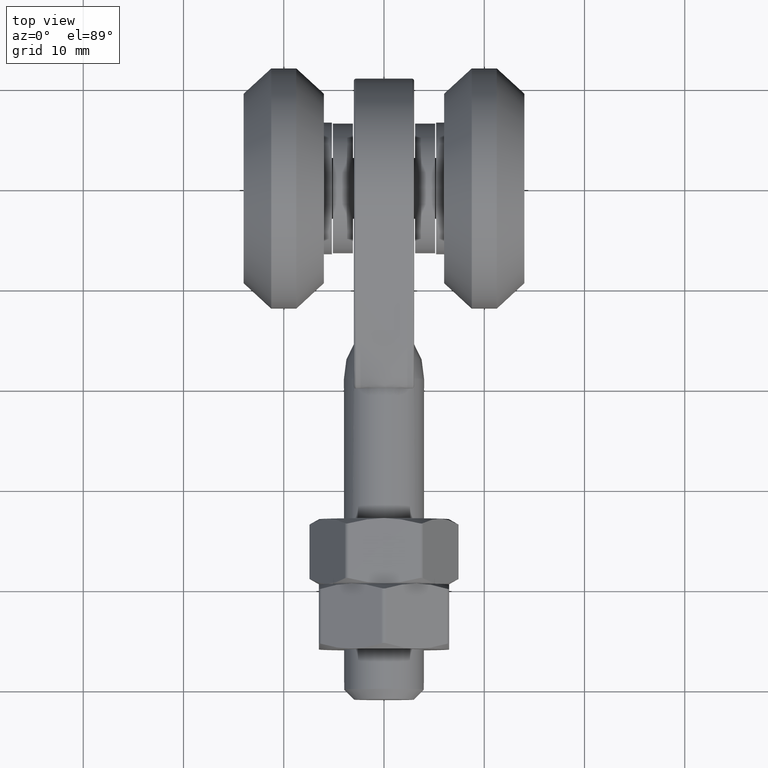
[diagram: clean part render]
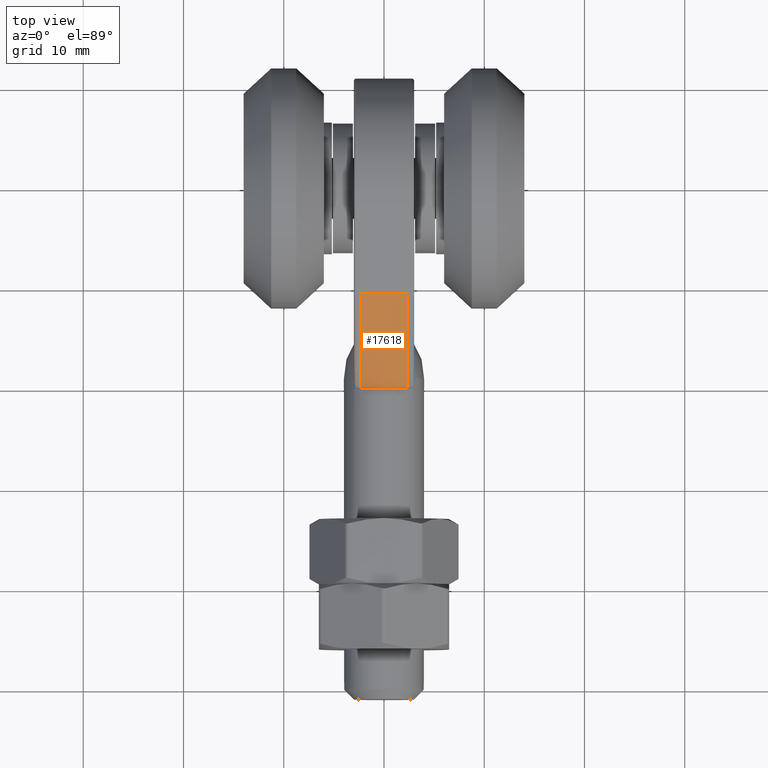
[diagram: same view with one face highlighted and labeled with its STEP entity id]
A machine part, top view. The second image highlights one B-rep face of the part: STEP entity #17618.
In plain terms, the highlighted face is a freeform B-spline surface patch.
Its self-contained STEP definition (entity closure, byte-faithful):
#147 = CARTESIAN_POINT ( 'NONE',  ( 1.063628923261003667, 9.357181689248472267, 7.970383240609347553 ) ) ;
#238 = CARTESIAN_POINT ( 'NONE',  ( -0.6892895054689178735, 9.350655626458923564, 7.968137219966314078 ) ) ;
#422 = CARTESIAN_POINT ( 'NONE',  ( 1.747465069360172985, 0.04068322996808503705, 4.764001608210072902 ) ) ;
#778 = CARTESIAN_POINT ( 'NONE',  ( 2.334706252058382780, 4.659900937342698057E-13, 4.750000000000171418 ) ) ;
#1045 = ORIENTED_EDGE ( 'NONE', *, *, #14794, .F. ) ;
#2152 = CARTESIAN_POINT ( 'NONE',  ( -1.557021538185800580, 9.365699097785354255, 7.973314606122650972 ) ) ;
#2199 = CARTESIAN_POINT ( 'NONE',  ( 0.1493120899006096514, 9.346492886878465356, 7.966704564576574832 ) ) ;
#2215 = EDGE_LOOP ( 'NONE', ( #9300, #16847, #1045, #8713 ) ) ;
#2837 = CARTESIAN_POINT ( 'NONE',  ( -2.080294859688034848, 3.416263883674256596E-13, 3.430822462178917842 ) ) ;
#2974 =( BOUNDED_SURFACE ( )  B_SPLINE_SURFACE ( 2, 3, ( 
 ( #24088, #19918, #7042, #4814, #22095, #24269, #11329, #26438, #2837, #17836 ),
 ( #778, #6777, #422, #19734, #15418, #17577, #21923, #11150, #3201, #27758 ),
 ( #14563, #6740, #17273, #14687, #23708, #15410, #17570, #2152, #5137, #22910 ) ),
 .UNSPECIFIED., .F., .F., .F. ) 
 B_SPLINE_SURFACE_WITH_KNOTS ( ( 3, 3 ),
 ( 4, 2, 2, 2, 4 ),
 ( 0.000000000000000000, 1.000000000000000000 ),
 ( 0.04448880268146761935, 0.04564142856625125200, 0.04679405445103487771, 0.04794668033581851035, 0.04909930622060214300 ),
 .UNSPECIFIED. ) 
 GEOMETRIC_REPRESENTATION_ITEM ( )  RATIONAL_B_SPLINE_SURFACE ( (
 ( 1.000000000000000000, 1.000000000000000000, 1.000000000000000000, 1.000000000000000000, 1.000000000000000000, 1.000000000000000000, 1.000000000000000000, 1.000000000000000000, 1.000000000000000000, 1.000000000000000000),
 ( 0.8140724380566555229, 0.8189149041128426232, 0.8238460730468063486, 0.8313034855847623028, 0.8336902173337510380, 0.8336879550237867864, 0.8312989821270813096, 0.8238384905108471212, 0.8189037746470038126, 0.8140724380576309649),
 ( 1.000000000000000000, 1.000000000000000000, 1.000000000000000000, 1.000000000000000000, 1.000000000000000000, 1.000000000000000000, 1.000000000000000000, 1.000000000000000000, 1.000000000000000000, 1.000000000000000000) ) ) 
 REPRESENTATION_ITEM ( '' )  SURFACE ( )  );
#3201 = CARTESIAN_POINT ( 'NONE',  ( -2.075434284250804673, 0.02484576507686627952, 4.758550959906211908 ) ) ;
#4259 = CARTESIAN_POINT ( 'NONE',  ( -2.334706251978115432, 9.372860655966379184, 7.975779339918439348 ) ) ;
#4272 = CARTESIAN_POINT ( 'NONE',  ( -1.201120951121378733, 9.359527243849802502, 7.971190490588980104 ) ) ;
#4385 = VERTEX_POINT ( 'NONE', #4259 ) ;
#4814 = CARTESIAN_POINT ( 'NONE',  ( 0.9555645178155532937, -3.271937269257959406E-13, 3.907261928719886868 ) ) ;
#5137 = CARTESIAN_POINT ( 'NONE',  ( -1.946419859517259043, 9.372860652806354054, 7.975779338830882637 ) ) ;
#5511 = CARTESIAN_POINT ( 'NONE',  ( -1.997326384742815097, 6.491748105640426641E-15, 3.490462309419086750 ) ) ;
#5887 = CARTESIAN_POINT ( 'NONE',  ( -0.8309339630779274399, 6.434833738353116977E-15, 3.934741232872706718 ) ) ;
#5918 = CARTESIAN_POINT ( 'NONE',  ( 2.334706252056078846, 9.372860655966379184, 7.975779339918439348 ) ) ;
#6230 = CARTESIAN_POINT ( 'NONE',  ( -0.2995113188130824056, 9.346503689777133417, 7.966708282520176709 ) ) ;
#6270 = FACE_OUTER_BOUND ( 'NONE', #2215, .T. ) ;
#6740 = CARTESIAN_POINT ( 'NONE',  ( 1.945532284869098349, 9.372860652734122056, 7.975779338806021634 ) ) ;
#6777 = CARTESIAN_POINT ( 'NONE',  ( 2.074795570732451910, 0.02490697221356137636, 4.758572025055352483 ) ) ;
#7042 = CARTESIAN_POINT ( 'NONE',  ( 1.753514828732290587, 3.480104086375196452E-13, 3.620080835769312610 ) ) ;
#7660 = CARTESIAN_POINT ( 'NONE',  ( -2.334706252007089589, 6.938893903907228378E-15, 3.247944999047706727 ) ) ;
#8377 = CARTESIAN_POINT ( 'NONE',  ( 0.9625110362381803508, 9.355535681615078758, 7.969816747879745478 ) ) ;
#8656 = CARTESIAN_POINT ( 'NONE',  ( -1.393844635137379440, 9.362755332433980726, 7.972301474934578636 ) ) ;
#8713 = ORIENTED_EDGE ( 'NONE', *, *, #22688, .F. ) ;
#8747 = CARTESIAN_POINT ( 'NONE',  ( -1.603898196701384782, 9.366051333228252673, 7.973435832059553974 ) ) ;
#9300 = ORIENTED_EDGE ( 'NONE', *, *, #17724, .T. ) ;
#9501 = VERTEX_POINT ( 'NONE', #18703 ) ;
#10524 = CARTESIAN_POINT ( 'NONE',  ( 1.107755752328098087, 9.357923643868460317, 7.970638592947570267 ) ) ;
#10544 = B_SPLINE_CURVE_WITH_KNOTS ( 'NONE', 3,
 ( #27795, #17131, #15062, #8747, #8656, #13072, #27881, #4272, #25613, #238, #6230, #2199, #15243, #19373, #8377, #147, #10524, #25799, #21262, #17393, #23445, #14882 ),
 .UNSPECIFIED., .F., .F.,
 ( 4, 1, 1, 1, 1, 2, 2, 2, 1, 1, 1, 1, 2, 2, 4 ),
 ( 0.000000000000000000, 0.1249999999999990008, 0.1874999999999986400, 0.2187499999999984457, 0.2343749999999983347, 0.2421874999999983347, 0.2499999999999983347, 0.4999999999999995559, 0.6250000000000002220, 0.6875000000000004441, 0.7187500000000006661, 0.7343750000000007772, 0.7421875000000008882, 0.7500000000000008882, 1.000000000000000000 ),
 .UNSPECIFIED. ) ;
#10682 = CARTESIAN_POINT ( 'NONE',  ( -2.334706252005729787, 5.511867004481806634E-12, 4.750000000001907807 ) ) ;
#11150 = CARTESIAN_POINT ( 'NONE',  ( -1.748059527941270286, 0.04066363814788762077, 4.763994865456997907 ) ) ;
#11329 = CARTESIAN_POINT ( 'NONE',  ( -0.9562641874220416671, 1.023269802241003155E-12, 3.907087454808109594 ) ) ;
#11486 = B_SPLINE_CURVE_WITH_KNOTS ( 'NONE', 3,
 ( #20928, #18465, #22918, #14350, #20633, #18364, #5887, #23107, #5511, #7660 ),
 .UNSPECIFIED., .F., .F.,
 ( 4, 2, 2, 2, 4 ),
 ( 0.000000000000000000, 0.2500000000000000555, 0.5000000000000000000, 0.7500000000000000000, 1.000000000000000000 ),
 .UNSPECIFIED. ) ;
#12775 = CARTESIAN_POINT ( 'NONE',  ( -2.334706251978115432, 9.372860655966379184, 7.975779339918439348 ) ) ;
#12869 = CARTESIAN_POINT ( 'NONE',  ( -2.334706252007089589, 6.938893903907228378E-15, 3.247944999047706727 ) ) ;
#12902 = EDGE_CURVE ( 'NONE', #16449, #27627, #11486, .T. ) ;
#12914 = CARTESIAN_POINT ( 'NONE',  ( 2.334706252058496911, 6.938893903907228378E-15, 3.247944999010753619 ) ) ;
#13072 = CARTESIAN_POINT ( 'NONE',  ( -1.282835084553491489, 9.360917178194799959, 7.971668852708988062 ) ) ;
#14350 = CARTESIAN_POINT ( 'NONE',  ( 0.8309339631402085091, 6.434833738354800406E-15, 3.934741232859555016 ) ) ;
#14563 = CARTESIAN_POINT ( 'NONE',  ( 2.334706252056079734, 9.372860655966379184, 7.975779339918441124 ) ) ;
#14566 = CARTESIAN_POINT ( 'NONE',  ( 2.334706252056078402, 7.047314121155777243E-15, 4.750000000000013323 ) ) ;
#14687 = CARTESIAN_POINT ( 'NONE',  ( 0.7780431342601258349, 9.352195360861745854, 7.968667137523817168 ) ) ;
#14794 = EDGE_CURVE ( 'NONE', #9501, #16449, #22974, .T. ) ;
#14882 = CARTESIAN_POINT ( 'NONE',  ( 2.334706252056078846, 9.372860655966379184, 7.975779339918439348 ) ) ;
#15062 = CARTESIAN_POINT ( 'NONE',  ( -1.976143161414297467, 9.371122104080457760, 7.975180997004702732 ) ) ;
#15243 = CARTESIAN_POINT ( 'NONE',  ( 0.4074557098456271786, 9.348045790585651105, 7.967239014503801897 ) ) ;
#15410 = CARTESIAN_POINT ( 'NONE',  ( -0.3894696224257205297, 9.346499012607608847, 7.966706672817720047 ) ) ;
#15418 = CARTESIAN_POINT ( 'NONE',  ( 0.4775525016858347960, 0.05329207508702594326, 4.768341089354431794 ) ) ;
#16449 = VERTEX_POINT ( 'NONE', #12914 ) ;
#16847 = ORIENTED_EDGE ( 'NONE', *, *, #12902, .F. ) ;
#17131 = CARTESIAN_POINT ( 'NONE',  ( -2.213160859599487829, 9.372860654977197115, 7.975779339577997895 ) ) ;
#17273 = CARTESIAN_POINT ( 'NONE',  ( 1.556369723997474530, 9.365687285737315904, 7.973310540868521201 ) ) ;
#17393 = CARTESIAN_POINT ( 'NONE',  ( 1.702628000856553303, 9.368220876393277052, 7.974182505650009745 ) ) ;
#17570 = CARTESIAN_POINT ( 'NONE',  ( -0.7786525033508847615, 9.352205411669839208, 7.968670596626675540 ) ) ;
#17577 = CARTESIAN_POINT ( 'NONE',  ( -0.4782800860563184986, 0.05329179581761223083, 4.768340993240497205 ) ) ;
#17618 = ADVANCED_FACE ( 'NONE', ( #6270 ), #2974, .T. ) ;
#17724 = EDGE_CURVE ( 'NONE', #4385, #27627, #25914, .T. ) ;
#17836 = CARTESIAN_POINT ( 'NONE',  ( -2.334706252007091809, 6.938893903907228378E-15, 3.247944999047704062 ) ) ;
#18364 = CARTESIAN_POINT ( 'NONE',  ( -0.4154994833194380899, 6.426473761669294157E-15, 4.000000000003288037 ) ) ;
#18465 = CARTESIAN_POINT ( 'NONE',  ( 1.997326384798063792, 6.491748105644474286E-15, 3.490462309387472928 ) ) ;
#18703 = CARTESIAN_POINT ( 'NONE',  ( 2.334706252056078846, 9.372860655966379184, 7.975779339918439348 ) ) ;
#19373 = CARTESIAN_POINT ( 'NONE',  ( 0.7676541187274457112, 9.352584545601285271, 7.968801079992213765 ) ) ;
#19734 = CARTESIAN_POINT ( 'NONE',  ( 0.9515939797485449825, 0.05403392101280798249, 4.768596404284207502 ) ) ;
#19918 = CARTESIAN_POINT ( 'NONE',  ( 2.079674633921748228, -1.335074801948040260E-12, 3.431268296051882327 ) ) ;
#20633 = CARTESIAN_POINT ( 'NONE',  ( 0.4154994833827522216, 6.426473761670135083E-15, 3.999999999996711963 ) ) ;
#20928 = CARTESIAN_POINT ( 'NONE',  ( 2.334706252058496911, 6.938893903907228378E-15, 3.247944999010753619 ) ) ;
#21262 = CARTESIAN_POINT ( 'NONE',  ( 1.150474505012305748, 9.358651337265353476, 7.970889037119486709 ) ) ;
#21923 = CARTESIAN_POINT ( 'NONE',  ( -0.9522900383263116497, 0.05403176272313726242, 4.768595661483230330 ) ) ;
#22095 = CARTESIAN_POINT ( 'NONE',  ( 0.4802637917750071095, 6.938893903907228378E-15, 4.000043865353253736 ) ) ;
#22458 = CARTESIAN_POINT ( 'NONE',  ( -2.334706252007089589, 6.938893903907228378E-15, 3.247944999047706727 ) ) ;
#22688 = EDGE_CURVE ( 'NONE', #4385, #9501, #10544, .T. ) ;
#22910 = CARTESIAN_POINT ( 'NONE',  ( -2.334706251978113656, 9.372860655966379184, 7.975779339918441124 ) ) ;
#22918 = CARTESIAN_POINT ( 'NONE',  ( 1.621909286654162230, 6.467473463533372999E-15, 3.679952457101859142 ) ) ;
#22974 =( BOUNDED_CURVE ( )  B_SPLINE_CURVE ( 2, ( #5918, #14566, #26040 ),
 .UNSPECIFIED., .F., .F. ) 
 B_SPLINE_CURVE_WITH_KNOTS ( ( 3, 3 ),
 ( 0.000000000000000000, 1.000000000000000000 ),
 .UNSPECIFIED. ) 
 CURVE ( )  GEOMETRIC_REPRESENTATION_ITEM ( )  RATIONAL_B_SPLINE_CURVE ( ( 1.000000000000000000, 0.8140724380565667051, 1.000000000000000000 ) ) 
 REPRESENTATION_ITEM ( '' )  );
#23107 = CARTESIAN_POINT ( 'NONE',  ( -1.621909286595913491, 6.467473463530082660E-15, 3.679952457127532384 ) ) ;
#23445 = CARTESIAN_POINT ( 'NONE',  ( 2.091794608498980690, 9.372860653948896115, 7.975779339224104092 ) ) ;
#23708 = CARTESIAN_POINT ( 'NONE',  ( 0.3888781964178129047, 9.346493963081766054, 7.966704934964494278 ) ) ;
#24088 = CARTESIAN_POINT ( 'NONE',  ( 2.334706252058496467, 6.938893903907228378E-15, 3.247944999010754064 ) ) ;
#24269 = CARTESIAN_POINT ( 'NONE',  ( -0.4809942017492251920, 6.938893903907228378E-15, 3.999956101303075329 ) ) ;
#25613 = CARTESIAN_POINT ( 'NONE',  ( -1.182791630621451207, 9.359211524360992129, 7.971081832043674709 ) ) ;
#25799 = CARTESIAN_POINT ( 'NONE',  ( 1.137349325433181013, 9.358426396454474272, 7.970811621115226231 ) ) ;
#25914 =( BOUNDED_CURVE ( )  B_SPLINE_CURVE ( 2, ( #12775, #10682, #12869 ),
 .UNSPECIFIED., .F., .F. ) 
 B_SPLINE_CURVE_WITH_KNOTS ( ( 3, 3 ),
 ( 0.000000000000000000, 1.000000000000000000 ),
 .UNSPECIFIED. ) 
 CURVE ( )  GEOMETRIC_REPRESENTATION_ITEM ( )  RATIONAL_B_SPLINE_CURVE ( ( 1.000000000000000000, 0.8140724380576309649, 1.000000000000000000 ) ) 
 REPRESENTATION_ITEM ( '' )  );
#26040 = CARTESIAN_POINT ( 'NONE',  ( 2.334706252058496911, 6.938893903907228378E-15, 3.247944999010753619 ) ) ;
#26438 = CARTESIAN_POINT ( 'NONE',  ( -1.754108018759373167, -1.002453120529281469E-12, 3.619789886025821968 ) ) ;
#27627 = VERTEX_POINT ( 'NONE', #22458 ) ;
#27758 = CARTESIAN_POINT ( 'NONE',  ( -2.334706252005729787, 5.511867004481806634E-12, 4.750000000001908695 ) ) ;
#27795 = CARTESIAN_POINT ( 'NONE',  ( -2.334706251978115432, 9.372860655966379184, 7.975779339918439348 ) ) ;
#27881 = CARTESIAN_POINT ( 'NONE',  ( -1.233977540774277681, 9.360088650554716949, 7.971383705255928653 ) ) ;